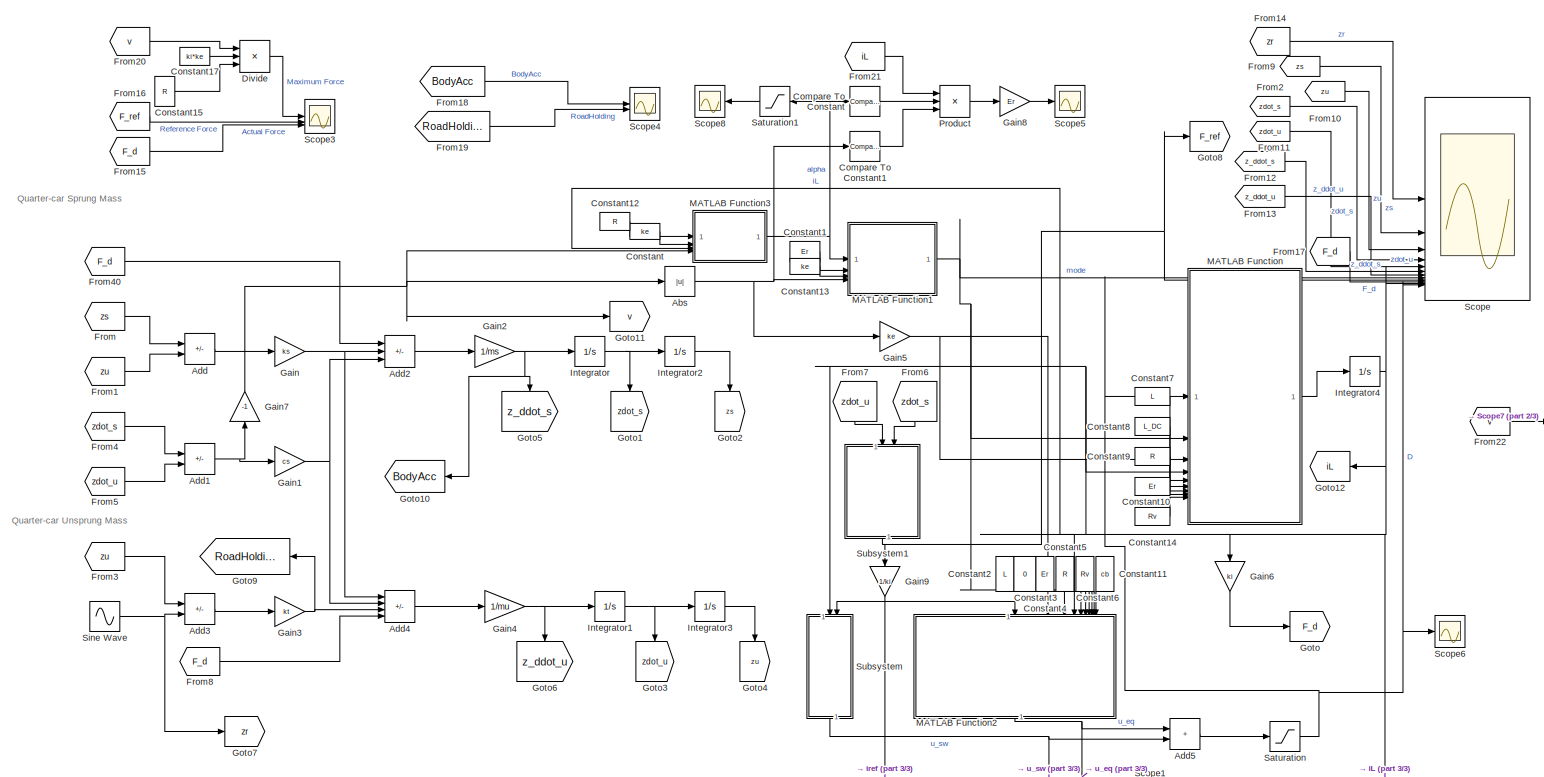
[diagram: root canvas - part 1/3, most of the canvas]
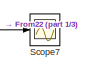
[diagram: root canvas - part 2/3, middle right region]
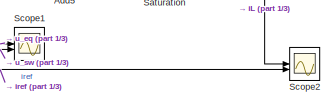
[diagram: root canvas - part 3/3, bottom right region]
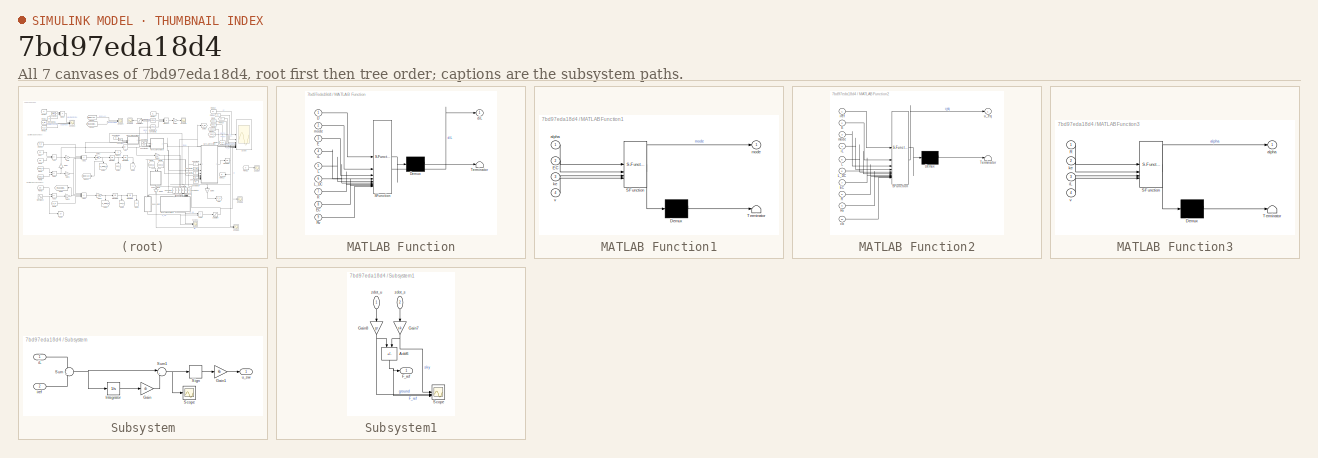
[diagram: thumbnail index - all 7 canvases of the model, root first then tree order]
MODEL slx_7bd97eda18d4
KIND model
CONFIG AbsTol = auto
CONFIG EnableMultiTasking = off
CONFIG FixedStep = 1e-4
CONFIG MaxStep = auto
CONFIG MinStep = auto
CONFIG RelTol = 1e-3
CONFIG SampleTimeConstraint = Unconstrained
CONFIG SolverName = ode4
CONFIG StartTime = 0.0
CONFIG StopTime = 100
BLOCK [Abs] Abs
  SaturateOnIntegerOverflow = off
BLOCK [Sum] Add
  IconShape = rectangular
  Inputs = +-
BLOCK [Sum] Add1
  IconShape = rectangular
  Inputs = +-
BLOCK [Sum] Add2
  IconShape = rectangular
  Inputs = +--
BLOCK [Sum] Add3
  IconShape = rectangular
  Inputs = +-
BLOCK [Sum] Add4
  IconShape = rectangular
  Inputs = ++--
BLOCK [Sum] Add5
  IconShape = rectangular
BLOCK [Reference] Compare To Constant  REF=simulink/Logic and Bit
Operations/Compare
To Constant
  SourceBlock = simulink/Logic and Bit\nOperations/Compare\nTo Constant
  SourceType = Compare To Constant
BLOCK [Reference] Compare To Constant1  REF=simulink/Logic and Bit
Operations/Compare
To Constant
  SourceBlock = simulink/Logic and Bit\nOperations/Compare\nTo Constant
  SourceType = Compare To Constant
BLOCK [Constant] Constant
  Value = ke
BLOCK [Constant] Constant1
  Value = Er
BLOCK [Constant] Constant10
  Value = Er
BLOCK [Constant] Constant11
  NameLocation = left
  Value = cb
BLOCK [Constant] Constant12
  Value = R
BLOCK [Constant] Constant13
  Value = ke
BLOCK [Constant] Constant14
  Value = Rv
BLOCK [Constant] Constant15
  Value = R
BLOCK [Constant] Constant17
  Value = ki*ke
BLOCK [Constant] Constant2
  NameLocation = left
  Value = L
BLOCK [Constant] Constant3
  NameLocation = left
  Value = 0
BLOCK [Constant] Constant4
  NameLocation = left
  Value = Er
BLOCK [Constant] Constant5
  NameLocation = left
  Value = R
BLOCK [Constant] Constant6
  NameLocation = left
  Value = Rv
BLOCK [Constant] Constant7
  Value = L
BLOCK [Constant] Constant8
  Value = L_DC
BLOCK [Constant] Constant9
  Value = R
BLOCK [Product] Divide
  Inputs = **/
BLOCK [From] From
  GotoTag = zs
BLOCK [From] From1
  GotoTag = zu
BLOCK [From] From10
  GotoTag = zu
BLOCK [From] From11
  GotoTag = zdot_u
BLOCK [From] From12
  GotoTag = z_ddot_s
BLOCK [From] From13
  GotoTag = z_ddot_u
BLOCK [From] From14
  GotoTag = zr
BLOCK [From] From15
  GotoTag = F_d
BLOCK [From] From16
  GotoTag = F_ref
BLOCK [From] From17
  GotoTag = F_d
BLOCK [From] From18
  GotoTag = BodyAcc
BLOCK [From] From19
  GotoTag = RoadHolding
BLOCK [From] From2
  GotoTag = zdot_s
BLOCK [From] From20
  GotoTag = v
BLOCK [From] From21
  GotoTag = iL
BLOCK [From] From22
  GotoTag = v
BLOCK [From] From3
  GotoTag = zu
BLOCK [From] From4
  GotoTag = zdot_s
BLOCK [From] From40
  GotoTag = F_d
BLOCK [From] From5
  GotoTag = zdot_u
BLOCK [From] From6
  GotoTag = zdot_s
  NameLocation = left
BLOCK [From] From7
  GotoTag = zdot_u
  NameLocation = left
BLOCK [From] From8
  GotoTag = F_d
BLOCK [From] From9
  GotoTag = zs
BLOCK [Gain] Gain
  Gain = ks
BLOCK [Gain] Gain1
  Gain = cs
BLOCK [Gain] Gain2
  Gain = 1/ms
BLOCK [Gain] Gain3
  Gain = kt
BLOCK [Gain] Gain4
  Gain = 1/mu
BLOCK [Gain] Gain5
  Gain = ke
BLOCK [Gain] Gain6
  Gain = ki
  NameLocation = left
BLOCK [Gain] Gain7
  Gain = -1
  NameLocation = right
BLOCK [Gain] Gain8
  Gain = Er
BLOCK [Gain] Gain9
  Gain = 1/ki
  NameLocation = left
BLOCK [Goto] Goto
  GotoTag = F_d
BLOCK [Goto] Goto1
  GotoTag = zdot_s
  NameLocation = left
BLOCK [Goto] Goto10
  GotoTag = BodyAcc
  NameLocation = top
BLOCK [Goto] Goto11
  GotoTag = v
BLOCK [Goto] Goto12
  GotoTag = iL
  NameLocation = top
BLOCK [Goto] Goto2
  GotoTag = zs
  NameLocation = left
BLOCK [Goto] Goto3
  GotoTag = zdot_u
  NameLocation = left
BLOCK [Goto] Goto4
  GotoTag = zu
  NameLocation = left
BLOCK [Goto] Goto5
  GotoTag = z_ddot_s
  NameLocation = left
BLOCK [Goto] Goto6
  GotoTag = z_ddot_u
  NameLocation = left
BLOCK [Goto] Goto7
  GotoTag = zr
BLOCK [Goto] Goto8
  GotoTag = F_ref
BLOCK [Goto] Goto9
  GotoTag = RoadHolding
  NameLocation = top
BLOCK [Integrator] Integrator
BLOCK [Integrator] Integrator1
BLOCK [Integrator] Integrator2
BLOCK [Integrator] Integrator3
BLOCK [Integrator] Integrator4
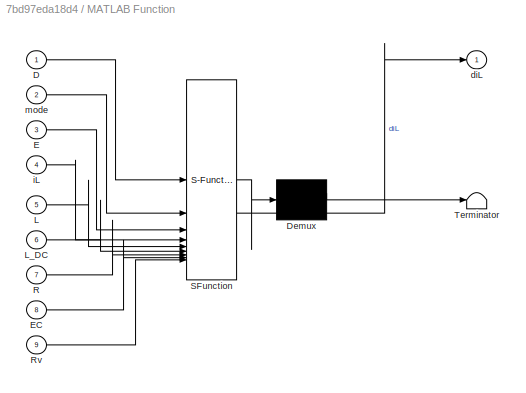
BLOCK [SubSystem] MATLAB Function
  ErrorFcn = Stateflow.Translate.translate
  PermitHierarchicalResolution = ExplicitOnly
  SFBlockType = MATLAB Function
  TreatAsAtomicUnit = on
BLOCK [Demux] MATLAB Function/ Demux 
  Outputs = 1
BLOCK [S-Function] MATLAB Function/ SFunction 
  EnableBusSupport = off
  FunctionName = sf_sfun
  PortCounts = [9 2]
  SFcnIsStateOwnerBlock = off
  SFunctionDeploymentMode = off
  Tag = Stateflow S-Function 2
BLOCK [Terminator] MATLAB Function/ Terminator 
BLOCK [Inport] MATLAB Function/D
BLOCK [Inport] MATLAB Function/E
  Port = 3
BLOCK [Inport] MATLAB Function/EC
  Port = 8
BLOCK [Inport] MATLAB Function/L
  Port = 5
BLOCK [Inport] MATLAB Function/L_DC
  Port = 6
BLOCK [Inport] MATLAB Function/R
  Port = 7
BLOCK [Inport] MATLAB Function/Rv
  Port = 9
BLOCK [Outport] MATLAB Function/diL
BLOCK [Inport] MATLAB Function/iL
  Port = 4
BLOCK [Inport] MATLAB Function/mode
  Port = 2
BLOCK [SubSystem] MATLAB Function1
  ErrorFcn = Stateflow.Translate.translate
  PermitHierarchicalResolution = ExplicitOnly
  SFBlockType = MATLAB Function
  TreatAsAtomicUnit = on
BLOCK [Demux] MATLAB Function1/ Demux 
  Outputs = 1
BLOCK [S-Function] MATLAB Function1/ SFunction 
  EnableBusSupport = off
  FunctionName = sf_sfun
  PortCounts = [4 2]
  SFcnIsStateOwnerBlock = off
  SFunctionDeploymentMode = off
  Tag = Stateflow S-Function 1
BLOCK [Terminator] MATLAB Function1/ Terminator 
BLOCK [Inport] MATLAB Function1/EC
  Port = 2
BLOCK [Inport] MATLAB Function1/alpha
BLOCK [Inport] MATLAB Function1/ke
  Port = 3
BLOCK [Outport] MATLAB Function1/mode
BLOCK [Inport] MATLAB Function1/v
  Port = 4
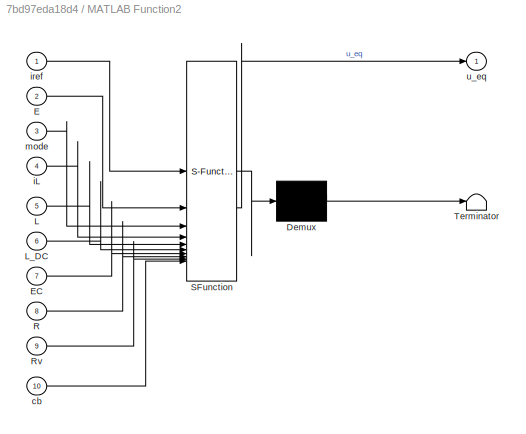
BLOCK [SubSystem] MATLAB Function2
  ErrorFcn = Stateflow.Translate.translate
  NameLocation = left
  PermitHierarchicalResolution = ExplicitOnly
  SFBlockType = MATLAB Function
  TreatAsAtomicUnit = on
BLOCK [Demux] MATLAB Function2/ Demux 
  Outputs = 1
BLOCK [S-Function] MATLAB Function2/ SFunction 
  EnableBusSupport = off
  FunctionName = sf_sfun
  PortCounts = [10 2]
  SFcnIsStateOwnerBlock = off
  SFunctionDeploymentMode = off
  Tag = Stateflow S-Function 3
BLOCK [Terminator] MATLAB Function2/ Terminator 
BLOCK [Inport] MATLAB Function2/E
  Port = 2
BLOCK [Inport] MATLAB Function2/EC
  Port = 7
BLOCK [Inport] MATLAB Function2/L
  Port = 5
BLOCK [Inport] MATLAB Function2/L_DC
  Port = 6
BLOCK [Inport] MATLAB Function2/R
  Port = 8
BLOCK [Inport] MATLAB Function2/Rv
  Port = 9
BLOCK [Inport] MATLAB Function2/cb
  Port = 10
BLOCK [Inport] MATLAB Function2/iL
  Port = 4
BLOCK [Inport] MATLAB Function2/iref
BLOCK [Inport] MATLAB Function2/mode
  Port = 3
BLOCK [Outport] MATLAB Function2/u_eq
BLOCK [SubSystem] MATLAB Function3
  ErrorFcn = Stateflow.Translate.translate
  PermitHierarchicalResolution = ExplicitOnly
  SFBlockType = MATLAB Function
  TreatAsAtomicUnit = on
BLOCK [Demux] MATLAB Function3/ Demux 
  Outputs = 1
BLOCK [S-Function] MATLAB Function3/ SFunction 
  EnableBusSupport = off
  FunctionName = sf_sfun
  PortCounts = [4 2]
  SFcnIsStateOwnerBlock = off
  SFunctionDeploymentMode = off
  Tag = Stateflow S-Function 4
BLOCK [Terminator] MATLAB Function3/ Terminator 
BLOCK [Inport] MATLAB Function3/R
BLOCK [Outport] MATLAB Function3/alpha
BLOCK [Inport] MATLAB Function3/iL
  Port = 3
BLOCK [Inport] MATLAB Function3/ke
  Port = 2
BLOCK [Inport] MATLAB Function3/v
  Port = 4
BLOCK [Product] Product
  Inputs = 3
BLOCK [Saturate] Saturation
  LowerLimit = 0
  UpperLimit = 1
BLOCK [Saturate] Saturation1
  NameLocation = top
  UpperLimit = 2
BLOCK [Scope] Scope
  ActiveDisplayYMaximum = 0.0375
  ActiveDisplayYMinimum = -0.0375
  Floating = off
  GraphicalSettings = {"AxesScalingProperties":{"AlignXAxis":"Center","AlignYAxis":"Center","AutoScaleXAxisLimits":false,"AxesScaling":"Manual","AxesScalingNumUpdates":10,"ExpandOnly":true,"ScaleAxesLimitsAtStop":false,"XAxisDataRange":100,"YAxisDataRange":80},"DisplayProperties":{"ColorOrder":["auto","auto","auto","auto","auto","auto","auto","auto","auto","auto","auto","auto","auto","auto","auto","auto","auto","auto",...<+6602ch>
  LayoutDimensionsString = [4,3]
  MultipleDisplayCache = [{"MaxYLimMag":0.0375,"MaxYLimReal":0.0375,"MinYLimMag":0,"MinYLimReal":-0.0375,"PlotAsMagnitudePhase":false,"ShowGrid":true,"ShowLegend":false,"Title":"%<SignalLabel>","YLabel":""},{"MaxYLimMag":0.0666047880443145,"MaxYLimReal":0.050351082880653528,"MinYLimMag":0,"MinYLimReal":-0.0666047880443145,"PlotAsMagnitudePhase":false,"ShowGrid":true,"ShowLegend":false,"Title":"%<SignalLabel>","YLabel":""}...<+2133ch>
  NumInputPorts = 12
  ScopeFrameLocation = window
  WasSavedAsWebScope = on
  WindowPosition = [356.000000,63.000000,1440.000000,900.000000,]
BLOCK [Scope] Scope1
  ActiveDisplayYMaximum = 5.6555134359520425
  ActiveDisplayYMinimum = -4.6506960547384262
  DataLoggingVariableName = ScopeData1
  Floating = off
  GraphicalSettings = {"Style":{"BackgroundColor":[0.12941176470588237,0.12941176470588237,0.12941176470588237],"AxesColor":[0.07058823529411765,0.07058823529411765,0.07058823529411765],"LabelsColor":[0.8509803921568627,0.8509803921568627,0.8509803921568627],"PreserveColors":false,"Visible":[true,true],"LineStyle":["-","-"],"LineWidth":[1.5,1.5],"BarWidth":[0.9,0.9],"LineColor":["auto","auto"],"LineFaceAlpha":[1,1],"Li...<+2138ch>
  MultipleDisplayCache = [{"MaxYLimMag":5.6555134359520425,"MaxYLimReal":5.6555134359520425,"MinYLimMag":0,"MinYLimReal":-4.6506960547384262,"PlotAsMagnitudePhase":false,"ShowGrid":true,"ShowLegend":true,"Title":"%<SignalLabel>","YLabel":""}]
  NumInputPorts = 2
  ScopeFrameLocation = window
  ShowLegend = on
  WasSavedAsWebScope = on
  WindowPosition = [1.000000,49.000000,1920.000000,1009.000000,]
BLOCK [Scope] Scope2
  ActiveDisplayYMaximum = 3.7744579560238818
  ActiveDisplayYMinimum = -3.7549197024153775
  DataLoggingVariableName = ScopeData3
  Floating = off
  GraphicalSettings = {"Style":{"BackgroundColor":[0.12941176470588237,0.12941176470588237,0.12941176470588237],"AxesColor":[0.07058823529411765,0.07058823529411765,0.07058823529411765],"LabelsColor":[0.8509803921568627,0.8509803921568627,0.8509803921568627],"PreserveColors":false,"Visible":[true,true],"LineStyle":["-","-"],"LineWidth":[1.5,1.5],"BarWidth":[0.9,0.9],"LineColor":["auto","auto"],"LineFaceAlpha":[1,1],"Li...<+2132ch>
  MultipleDisplayCache = [{"MaxYLimMag":3.7744579560238818,"MaxYLimReal":3.7744579560238818,"MinYLimMag":0,"MinYLimReal":-3.7549197024153775,"PlotAsMagnitudePhase":false,"ShowGrid":true,"ShowLegend":true,"Title":"%<SignalLabel>","YLabel":""}]
  NumInputPorts = 2
  ScopeFrameLocation = window
  ShowLegend = on
  WasSavedAsWebScope = on
  WindowPosition = [2.000000,50.000000,958.000000,1000.000000,]
BLOCK [Scope] Scope3
  ActiveDisplayYMaximum = 329.74956960635626
  ActiveDisplayYMinimum = -307.201086370598
  DataLoggingVariableName = ScopeData4
  Floating = off
  GraphicalSettings = {"Style":{"BackgroundColor":[0.12941176470588237,0.12941176470588237,0.12941176470588237],"AxesColor":[0.07058823529411765,0.07058823529411765,0.07058823529411765],"LabelsColor":[0.8509803921568627,0.8509803921568627,0.8509803921568627],"PreserveColors":false,"Visible":[true,true,true],"LineStyle":["-","-","-"],"LineWidth":[1.5,1.5,1.5],"BarWidth":[0.9,0.9,0.9],"LineColor":["auto","auto","auto"],"...<+2300ch>
  MultipleDisplayCache = [{"MaxYLimMag":329.74956960635626,"MaxYLimReal":329.74956960635626,"MinYLimMag":0,"MinYLimReal":-307.201086370598,"PlotAsMagnitudePhase":false,"ShowGrid":true,"ShowLegend":true,"Title":"%<SignalLabel>","YLabel":""}]
  NumInputPorts = 3
  ScopeFrameLocation = window
  ShowLegend = on
  Visible = on
  WasSavedAsWebScope = on
  WindowPosition = [953.000000,27.000000,375.000000,1000.000000,]
BLOCK [Scope] Scope4
  ActiveDisplayYMaximum = 1
  ActiveDisplayYMinimum = -1
  DataLoggingVariableName = ScopeData5
  Floating = off
  GraphicalSettings = {"Style":{"BackgroundColor":[0.12941176470588237,0.12941176470588237,0.12941176470588237],"AxesColor":[0.07058823529411765,0.07058823529411765,0.07058823529411765],"LabelsColor":[0.8509803921568627,0.8509803921568627,0.8509803921568627],"PreserveColors":false,"Visible":[true,true],"LineStyle":["-","-"],"LineWidth":[1.5,1.5],"BarWidth":[0.9,0.9],"LineColor":["auto","auto"],"LineFaceAlpha":[1,1],"Li...<+2281ch>
  LayoutDimensionsString = [2, 1]
  MultipleDisplayCache = [{"MaxYLimMag":1,"MaxYLimReal":1,"MinYLimMag":0,"MinYLimReal":-1,"PlotAsMagnitudePhase":false,"ShowGrid":true,"ShowLegend":true,"Title":"%<SignalLabel>","YLabel":""},{"MaxYLimMag":1,"MaxYLimReal":1,"MinYLimMag":0,"MinYLimReal":-1,"PlotAsMagnitudePhase":false,"ShowGrid":true,"ShowLegend":true,"Title":"%<SignalLabel>","YLabel":""}]
  NumInputPorts = 2
  ScopeFrameLocation = window
  ShowLegend = on
  WasSavedAsWebScope = on
  WindowPosition = [1128.000000,220.000000,682.000000,643.000000,]
BLOCK [Scope] Scope5
  ActiveDisplayYMaximum = 16.280010486571626
  ActiveDisplayYMinimum = -10.790185960631474
  DataLoggingVariableName = ScopeData6
  Floating = off
  GraphicalSettings = {"Style":{"BackgroundColor":[0.12941176470588237,0.12941176470588237,0.12941176470588237],"AxesColor":[0.07058823529411765,0.07058823529411765,0.07058823529411765],"LabelsColor":[0.8509803921568627,0.8509803921568627,0.8509803921568627],"PreserveColors":false,"Visible":[true],"LineStyle":["-"],"LineWidth":[1.5],"BarWidth":[0.9],"LineColor":["auto"],"LineFaceAlpha":[1],"LineEdgeAlpha":[1],"Marker":...<+1995ch>
  MultipleDisplayCache = [{"MaxYLimMag":16.280010486571626,"MaxYLimReal":16.280010486571626,"MinYLimMag":0,"MinYLimReal":-10.790185960631474,"PlotAsMagnitudePhase":false,"ShowGrid":true,"ShowLegend":false,"Title":"%<SignalLabel>","YLabel":""}]
  NumInputPorts = 1
  ScopeFrameLocation = window
  WasSavedAsWebScope = on
  WindowPosition = [1.000000,49.000000,1920.000000,1009.000000,]
BLOCK [Scope] Scope6
  ActiveDisplayYMaximum = 1
  ActiveDisplayYMinimum = -1
  DataLoggingVariableName = ScopeData7
  Floating = off
  GraphicalSettings = {"Style":{"BackgroundColor":[0.12941176470588237,0.12941176470588237,0.12941176470588237],"AxesColor":[0.07058823529411765,0.07058823529411765,0.07058823529411765],"LabelsColor":[0.8509803921568627,0.8509803921568627,0.8509803921568627],"PreserveColors":false,"Visible":[true],"LineStyle":["-"],"LineWidth":[1.5],"BarWidth":[0.9],"LineColor":["auto"],"LineFaceAlpha":[1],"LineEdgeAlpha":[1],"Marker":...<+1936ch>
  MultipleDisplayCache = [{"MaxYLimMag":1,"MaxYLimReal":1,"MinYLimMag":0,"MinYLimReal":-1,"PlotAsMagnitudePhase":false,"ShowGrid":true,"ShowLegend":false,"Title":"%<SignalLabel>","YLabel":""}]
  NumInputPorts = 1
  ScopeFrameLocation = window
  WasSavedAsWebScope = on
  WindowPosition = [1.000000,49.000000,1920.000000,1009.000000,]
BLOCK [Scope] Scope7
  ActiveDisplayYMaximum = 6.0991844285747394
  ActiveDisplayYMinimum = -8.4968848343231222
  DataLoggingVariableName = ScopeData8
  Floating = off
  GraphicalSettings = {"Style":{"BackgroundColor":[0.12941176470588237,0.12941176470588237,0.12941176470588237],"AxesColor":[0.07058823529411765,0.07058823529411765,0.07058823529411765],"LabelsColor":[0.8509803921568627,0.8509803921568627,0.8509803921568627],"PreserveColors":false,"Visible":[true],"LineStyle":["-"],"LineWidth":[1.5],"BarWidth":[0.9],"LineColor":["auto"],"LineFaceAlpha":[1],"LineEdgeAlpha":[1],"Marker":...<+2029ch>
  MultipleDisplayCache = [{"MaxYLimMag":8.4968848343231222,"MaxYLimReal":6.0991844285747394,"MinYLimMag":0,"MinYLimReal":-8.4968848343231222,"PlotAsMagnitudePhase":false,"ShowGrid":true,"ShowLegend":false,"Title":"%<SignalLabel>","YLabel":""}]
  NumInputPorts = 1
  ScopeFrameLocation = window
  WasSavedAsWebScope = on
  WindowPosition = [1.000000,49.000000,1920.000000,1009.000000,]
BLOCK [Scope] Scope8
  ActiveDisplayYMaximum = 2.1628540305010895
  ActiveDisplayYMinimum = -0.20370370370370372
  DataLoggingVariableName = ScopeData9
  Floating = off
  GraphicalSettings = {"AxesScalingProperties":{"AlignXAxis":"Center","AlignYAxis":"Center","AutoScaleXAxisLimits":false,"AxesScaling":"Manual","AxesScalingNumUpdates":10,"ExpandOnly":true,"ScaleAxesLimitsAtStop":false,"XAxisDataRange":100,"YAxisDataRange":80},"DisplayProperties":{"ColorOrder":["auto","auto","auto","auto","auto","auto","auto","auto","auto","auto","auto","auto","auto","auto","auto","auto","auto","auto",...<+1960ch>
  MultipleDisplayCache = [{"MaxYLimMag":2.25,"MaxYLimReal":2.1628540305010895,"MinYLimMag":0,"MinYLimReal":-0.20370370370370372,"PlotAsMagnitudePhase":false,"ShowGrid":true,"ShowLegend":false,"Title":"%<SignalLabel>","YLabel":""}]
  NameLocation = top
  NumInputPorts = 1
  ScopeFrameLocation = window
  WasSavedAsWebScope = on
  WindowPosition = [1.000000,49.000000,1920.000000,1009.000000,]
BLOCK [Sin] Sine Wave
  Amplitude = 0.03
  Frequency = 2*pi*1.3
  SampleTime = 0
BLOCK [SubSystem] Subsystem
  NameLocation = left
BLOCK [Gain] Subsystem/Gain
  Gain = cb
BLOCK [Gain] Subsystem/Gain1
  Gain = kb
BLOCK [Integrator] Subsystem/Integrator
BLOCK [Scope] Subsystem/Scope
  ActiveDisplayYMaximum = 5.77805500864005
  ActiveDisplayYMinimum = -37.034333635925037
  DataLoggingVariableName = ScopeData2
  Floating = off
  GraphicalSettings = {"Style":{"BackgroundColor":[0.12941176470588237,0.12941176470588237,0.12941176470588237],"AxesColor":[0.07058823529411765,0.07058823529411765,0.07058823529411765],"LabelsColor":[0.8509803921568627,0.8509803921568627,0.8509803921568627],"PreserveColors":false,"Visible":[true],"LineStyle":["-"],"LineWidth":[1.5],"BarWidth":[0.9],"LineColor":["auto"],"LineFaceAlpha":[1],"LineEdgeAlpha":[1],"Marker":...<+1988ch>
  MultipleDisplayCache = [{"MaxYLimMag":37.034333635925037,"MaxYLimReal":5.77805500864005,"MinYLimMag":0,"MinYLimReal":-37.034333635925037,"PlotAsMagnitudePhase":false,"ShowGrid":true,"ShowLegend":false,"Title":"%<SignalLabel>","YLabel":""}]
  NumInputPorts = 1
  ScopeFrameLocation = window
  WasSavedAsWebScope = on
  WindowPosition = [680.000000,330.000000,560.000000,441.000000,]
BLOCK [Signum] Subsystem/Sign
BLOCK [Sum] Subsystem/Sum
  Inputs = -+
BLOCK [Sum] Subsystem/Sum1
  Inputs = |++
BLOCK [Inport] Subsystem/iL
BLOCK [Inport] Subsystem/iref
  Port = 2
BLOCK [Outport] Subsystem/u_sw
BLOCK [SubSystem] Subsystem1
  NameLocation = right
BLOCK [Sum] Subsystem1/Add6
  IconShape = rectangular
  Inputs = --
  NameLocation = left
BLOCK [Outport] Subsystem1/F_ref
BLOCK [Gain] Subsystem1/Gain7
  Gain = sk
  NameLocation = left
BLOCK [Gain] Subsystem1/Gain8
  Gain = gr
  NameLocation = left
BLOCK [Scope] Subsystem1/Scope
  ActiveDisplayYMaximum = 1
  ActiveDisplayYMinimum = -1
  DataLoggingVariableName = ScopeData10
  Floating = off
  GraphicalSettings = {"Style":{"BackgroundColor":[0.12941176470588237,0.12941176470588237,0.12941176470588237],"AxesColor":[0.07058823529411765,0.07058823529411765,0.07058823529411765],"LabelsColor":[0.8509803921568627,0.8509803921568627,0.8509803921568627],"PreserveColors":false,"Visible":[true,true,true],"LineStyle":["-","-","-"],"LineWidth":[1.5,1.5,1.5],"BarWidth":[0.9,0.9,0.9],"LineColor":["auto","auto","auto"],"...<+2109ch>
  MultipleDisplayCache = [{"MaxYLimMag":1,"MaxYLimReal":1,"MinYLimMag":0,"MinYLimReal":-1,"PlotAsMagnitudePhase":false,"ShowGrid":true,"ShowLegend":true,"Title":"%<SignalLabel>","YLabel":""}]
  NumInputPorts = 3
  ScopeFrameLocation = window
  ShowLegend = on
  WasSavedAsWebScope = on
  WindowPosition = [1.000000,49.000000,1920.000000,1009.000000,]
BLOCK [Inport] Subsystem1/zdot_s
  NameLocation = left
  Port = 2
BLOCK [Inport] Subsystem1/zdot_u
  NameLocation = left
ANNOTATION (root): Quarter-car Sprung Mass
ANNOTATION (root): Quarter-car Unsprung Mass
NET Abs:1 -> Compare To Constant1:1, Gain5:1, MATLAB Function1:4
NET Add1:1 -> Gain1:1, Gain7:1
LINE Add2:1 -> Gain2:1
LINE Add3:1 -> Gain3:1
LINE Add4:1 -> Gain4:1
LINE Add5:1 -> Saturation:1
LINE Add:1 -> Gain:1
LINE Compare To Constant1:1 -> Product:3
LINE Compare To Constant:1 -> Product:2
LINE Constant10:1 -> MATLAB Function:8
LINE Constant11:1 -> MATLAB Function2:10
LINE Constant12:1 -> MATLAB Function3:1
LINE Constant13:1 -> MATLAB Function1:3
LINE Constant14:1 -> MATLAB Function:9
LINE Constant15:1 -> Divide:3
LINE Constant17:1 -> Divide:2
LINE Constant1:1 -> MATLAB Function1:2
LINE Constant2:1 -> MATLAB Function2:5
LINE Constant3:1 -> MATLAB Function2:6
LINE Constant4:1 -> MATLAB Function2:7
LINE Constant5:1 -> MATLAB Function2:8
LINE Constant6:1 -> MATLAB Function2:9
LINE Constant7:1 -> MATLAB Function:5
LINE Constant8:1 -> MATLAB Function:6
LINE Constant9:1 -> MATLAB Function:7
LINE Constant:1 -> MATLAB Function3:2
LINE Divide:1 -> Scope3:1
LINE From10:1 -> Scope:3
LINE From11:1 -> Scope:5
LINE From12:1 -> Scope:6
LINE From13:1 -> Scope:7
LINE From14:1 -> Scope:1
LINE From15:1 -> Scope3:3
LINE From16:1 -> Scope3:2
LINE From17:1 -> Scope:10
LINE From18:1 -> Scope4:1
LINE From19:1 -> Scope4:2
LINE From1:1 -> Add:2
LINE From20:1 -> Divide:1
LINE From21:1 -> Product:1
LINE From22:1 -> Scope7:1
LINE From2:1 -> Scope:4
LINE From3:1 -> Add3:1
LINE From40:1 -> Add2:1
LINE From4:1 -> Add1:1
LINE From5:1 -> Add1:2
LINE From6:1 -> Subsystem1:2
LINE From7:1 -> Subsystem1:1
LINE From8:1 -> Add4:4
LINE From9:1 -> Scope:2
LINE From:1 -> Add:1
NET Gain1:1 -> Add2:3, Add4:2
NET Gain2:1 -> Goto10:1, Goto5:1, Integrator:1
NET Gain3:1 -> Add4:3, Goto9:1
NET Gain4:1 -> Goto6:1, Integrator1:1
NET Gain5:1 -> MATLAB Function2:2, MATLAB Function:3
LINE Gain6:1 -> Goto:1
NET Gain7:1 -> Abs:1, Goto11:1, MATLAB Function3:4
LINE Gain8:1 -> Scope5:1
NET Gain9:1 -> MATLAB Function2:1, Scope2:2, Subsystem:2
NET Gain:1 -> Add2:2, Add4:1
NET Integrator1:1 -> Goto3:1, Integrator3:1
LINE Integrator2:1 -> Goto2:1
LINE Integrator3:1 -> Goto4:1
NET Integrator4:1 -> Gain6:1, Goto12:1, MATLAB Function2:4, MATLAB Function3:3, MATLAB Function:4, Scope2:1, Scope:11, Subsystem:1
NET Integrator:1 -> Goto1:1, Integrator2:1
NET MATLAB Function1:1 -> MATLAB Function2:3, MATLAB Function:2, Scope:8
NET MATLAB Function2:1 -> Add5:1, Scope1:1
NET MATLAB Function3:1 -> Compare To Constant:1, MATLAB Function1:1, Saturation1:1
LINE MATLAB Function:1 -> Integrator4:1
LINE Product:1 -> Gain8:1
LINE Saturation1:1 -> Scope8:1
NET Saturation:1 -> MATLAB Function:1, Scope6:1, Scope:12
NET Sine Wave:1 -> Add3:2, Goto7:1
LINE Subsystem/Gain1:1 -> Subsystem/u_sw:1
LINE Subsystem/Gain:1 -> Subsystem/Sum1:2
LINE Subsystem/Integrator:1 -> Subsystem/Gain:1
LINE Subsystem/Sign:1 -> Subsystem/Gain1:1
NET Subsystem/Sum1:1 -> Subsystem/Scope:1, Subsystem/Sign:1
NET Subsystem/Sum:1 -> Subsystem/Integrator:1, Subsystem/Sum1:1
LINE Subsystem/iL:1 -> Subsystem/Sum:1
LINE Subsystem/iref:1 -> Subsystem/Sum:2
NET Subsystem1/Add6:1 -> Subsystem1/F_ref:1, Subsystem1/Scope:3
NET Subsystem1/Gain7:1 -> Subsystem1/Add6:2, Subsystem1/Scope:1
NET Subsystem1/Gain8:1 -> Subsystem1/Add6:1, Subsystem1/Scope:2
LINE Subsystem1/zdot_s:1 -> Subsystem1/Gain7:1
LINE Subsystem1/zdot_u:1 -> Subsystem1/Gain8:1
NET Subsystem1:1 -> Gain9:1, Goto8:1, Scope:9
NET Subsystem:1 -> Add5:2, Scope1:2
note: NET lines group one-source signal fan-out (src -> all destinations, sorted); 1:1 wires keep LINE
CHART MATLAB Function1 states=1 transitions=1
  STATE_LABEL 'eML_blk_kernel()'
  STATE_LABEL 'SCRIPT:\nfunction mode = mode(alpha, EC, ke, v)\nv_alpha = EC/(ke-alpha*ke);\nif v<v_alpha\n    mode = 1;\nelse\n    mode = 0;\nend\n\n'
CHART MATLAB Function states=1 transitions=1
  STATE_LABEL 'eML_blk_kernel()'
  STATE_LABEL 'SCRIPT:\nfunction diL = diL(D, mode, E, iL, L, L_DC, R, EC, Rv)\n    LDC = L + L_DC;\n    if mode == 1  % boost\n        diL = -(R/LDC)*iL - ((1-D)/LDC)*EC + (1/LDC)*E;\n    else          % buck\n        diL  = -((D*R*L + (1-D)*(R+Rv)*LDC)/(L * LDC))*iL - (D/LDC)*EC + (D*L + (1-D)*LDC)/(L * LDC) * E;\n    end\nend'
CHART MATLAB Function2 states=1 transitions=1
  STATE_LABEL 'eML_blk_kernel()'
  STATE_LABEL 'SCRIPT:\nfunction u_eq = fcn(iref, E, mode, iL, L, L_DC, EC, R, Rv, cb)\n    LDC = L + L_DC;\n    e   = iL - iref;        % current error\n\n    if mode == 1  % boost\n        numerator   = EC - E + R*iref + cb*e*LDC;\n        denominator = EC;\n        u_eq = numerator / denominator;\n\n    else          % buck\n        numerator   = E - (R + Rv)*iref - cb*e*L;\n        denominator = (L*R*iref)/LDC - (R + Rv...<+82ch>'
CHART MATLAB Function3 states=1 transitions=1
  STATE_LABEL 'eML_blk_kernel()'
  STATE_LABEL 'SCRIPT:\nfunction alpha = fcn(R, ke, iL, v)\n    i_max = (ke * abs(v)) / R;\n    if i_max < 1e-6      % avoid divide-by-zero at v=0\n        alpha = 0;\n    else\n        alpha = abs(iL) / i_max;\n    end\nend'
CHART  states=0 transitions=0
CHART  states=0 transitions=0
CHART  states=0 transitions=0
CHART  states=0 transitions=0
